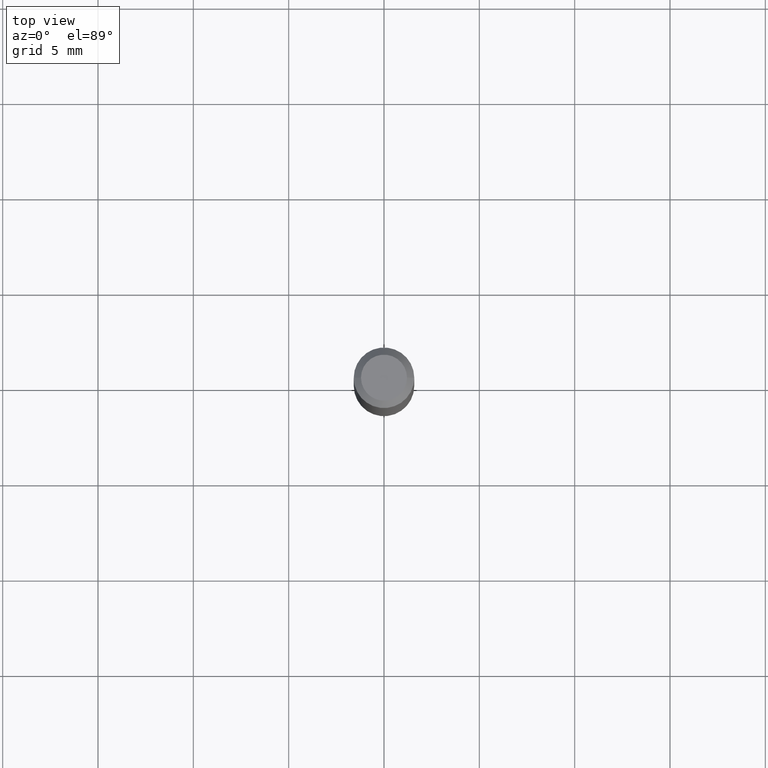
[diagram: clean part render]
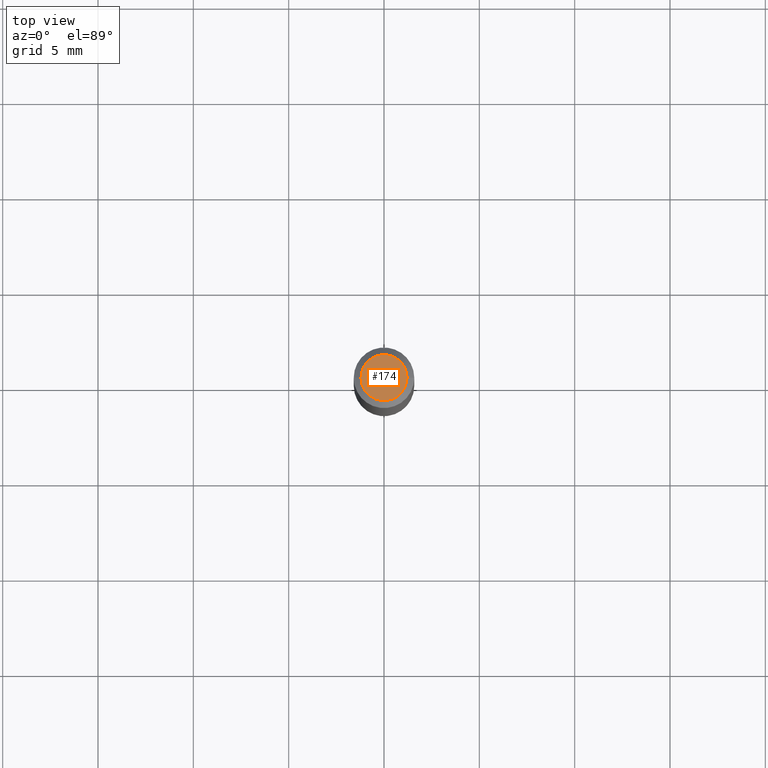
[diagram: same view with one face highlighted and labeled with its STEP entity id]
A machine part, top view. The second image highlights one B-rep face of the part: STEP entity #174.
In plain terms, the highlighted planar face has unit normal (0, -0, -1).
Its self-contained STEP definition (entity closure, byte-faithful):
#2 = CIRCLE ( 'NONE', #56, 0.04749999999999999362 ) ;
#29 = PLANE ( 'NONE',  #329 ) ;
#38 = DIRECTION ( 'NONE',  ( 2.438088387897960049E-29, -3.491481338843145188E-15, -1.000000000000000000 ) ) ;
#56 = AXIS2_PLACEMENT_3D ( 'NONE', #348, #309, #171 ) ;
#73 = DIRECTION ( 'NONE',  ( -1.000000000000000000, 6.982962677686265922E-15, -4.876176775795935793E-29 ) ) ;
#88 = EDGE_CURVE ( 'NONE', #337, #340, #2, .T. ) ;
#121 = DIRECTION ( 'NONE',  ( 1.000000000000000000, -6.982962677686267499E-15, 4.884662768193073002E-29 ) ) ;
#135 = EDGE_LOOP ( 'NONE', ( #444, #285 ) ) ;
#164 = CARTESIAN_POINT ( 'NONE',  ( -0.04749999999999999362, 3.578768372314211985E-16, 8.673617379884694910E-17 ) ) ;
#171 = DIRECTION ( 'NONE',  ( 1.000000000000000000, -6.982962677686267499E-15, 4.884662768193073002E-29 ) ) ;
#174 = ADVANCED_FACE ( 'NONE', ( #397 ), #29, .F. ) ;
#224 = CIRCLE ( 'NONE', #341, 0.04749999999999999362 ) ;
#249 = CARTESIAN_POINT ( 'NONE',  ( 3.316907271900976096E-16, 0.04749999999999999362, -1.224772766956247324E-16 ) ) ;
#269 = DIRECTION ( 'NONE',  ( -2.445468806185136597E-29, 3.491481338843145583E-15, 1.000000000000000000 ) ) ;
#285 = ORIENTED_EDGE ( 'NONE', *, *, #326, .T. ) ;
#301 = CARTESIAN_POINT ( 'NONE',  ( 0.04749999999999999362, -4.035134999187577144E-16, 8.673617379885194112E-17 ) ) ;
#309 = DIRECTION ( 'NONE',  ( -2.445468806185136597E-29, 3.491481338843145583E-15, 1.000000000000000000 ) ) ;
#326 = EDGE_CURVE ( 'NONE', #340, #337, #224, .T. ) ;
#329 = AXIS2_PLACEMENT_3D ( 'NONE', #249, #38, #73 ) ;
#337 = VERTEX_POINT ( 'NONE', #164 ) ;
#340 = VERTEX_POINT ( 'NONE', #301 ) ;
#341 = AXIS2_PLACEMENT_3D ( 'NONE', #401, #269, #121 ) ;
#348 = CARTESIAN_POINT ( 'NONE',  ( -2.121106073929386760E-45, 3.028377322213383622E-31, 8.673617379884936499E-17 ) ) ;
#397 = FACE_OUTER_BOUND ( 'NONE', #135, .T. ) ;
#401 = CARTESIAN_POINT ( 'NONE',  ( -2.121106073929386760E-45, 3.028377322213383622E-31, 8.673617379884936499E-17 ) ) ;
#444 = ORIENTED_EDGE ( 'NONE', *, *, #88, .T. ) ;